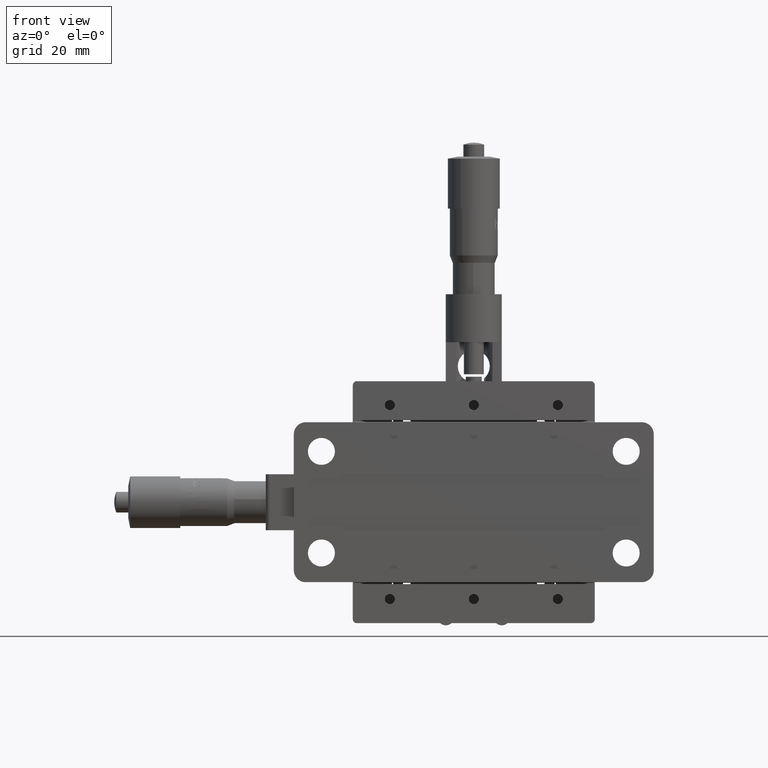
[diagram: clean part render]
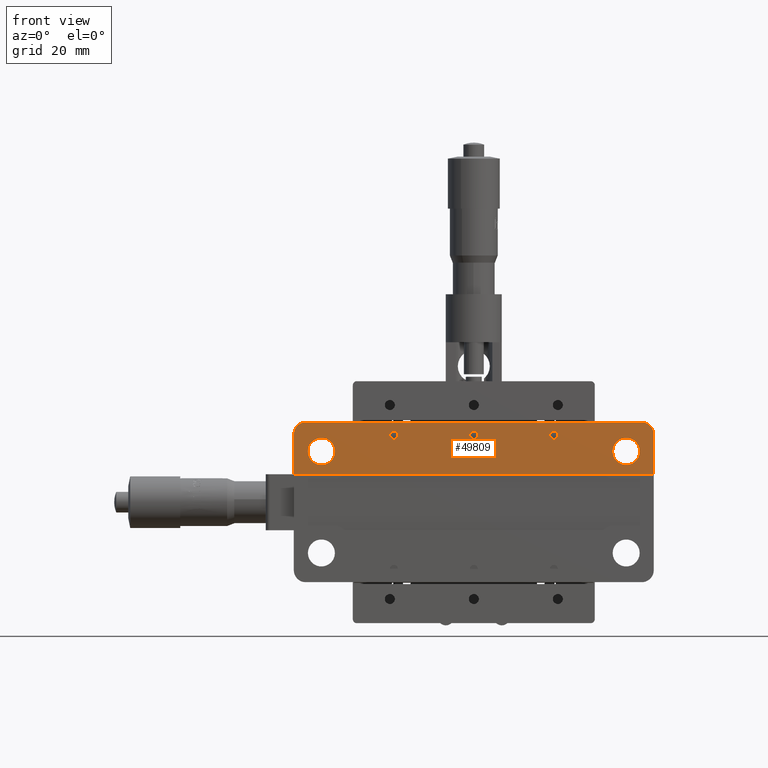
[diagram: same view with one face highlighted and labeled with its STEP entity id]
A machine part, front view. The second image highlights one B-rep face of the part: STEP entity #49809.
In plain terms, the highlighted planar face has unit normal (-0, -1, 0).
Its self-contained STEP definition (entity closure, byte-faithful):
#313 = ORIENTED_EDGE ( 'NONE', *, *, #62383, .F. ) ;
#328 = ORIENTED_EDGE ( 'NONE', *, *, #4516, .T. ) ;
#654 = VECTOR ( 'NONE', #11366, 1000.000000000000000 ) ;
#745 = EDGE_CURVE ( 'NONE', #62111, #57902, #9442, .T. ) ;
#829 = ORIENTED_EDGE ( 'NONE', *, *, #11904, .T. ) ;
#985 = CIRCLE ( 'NONE', #55430, 3.378199999999997900 ) ;
#1506 = EDGE_CURVE ( 'NONE', #61653, #65761, #9249, .T. ) ;
#2239 = AXIS2_PLACEMENT_3D ( 'NONE', #16568, #53657, #21901 ) ;
#2559 = CARTESIAN_POINT ( 'NONE',  ( 44.99999999999867100, -0.2000000000011714600, 6.999999999999784200 ) ) ;
#2897 = VECTOR ( 'NONE', #48389, 1000.000000000000000 ) ;
#2952 = VECTOR ( 'NONE', #51532, 1000.000000000000000 ) ;
#4516 = EDGE_CURVE ( 'NONE', #57902, #62111, #31489, .T. ) ;
#4999 = DIRECTION ( 'NONE',  ( -8.326672684688671600E-017, -1.000000000000000000, 0.0000000000000000000 ) ) ;
#5994 = VERTEX_POINT ( 'NONE', #2559 ) ;
#6262 = CIRCLE ( 'NONE', #27165, 1.024999999999998100 ) ;
#6847 = FACE_BOUND ( 'NONE', #56964, .T. ) ;
#7730 = EDGE_LOOP ( 'NONE', ( #34682, #31147, #39055, #829, #313, #65757 ) ) ;
#8172 = CARTESIAN_POINT ( 'NONE',  ( -38.10000000000133700, -0.2000000000011628000, 12.69999999999989600 ) ) ;
#8310 = DIRECTION ( 'NONE',  ( 8.326672684688671600E-017, 1.000000000000000000, 0.0000000000000000000 ) ) ;
#9086 = CARTESIAN_POINT ( 'NONE',  ( 1.024999999998499300, -0.2000000000011663300, 16.75000000000043300 ) ) ;
#9249 = LINE ( 'NONE', #13584, #49896 ) ;
#9442 = CIRCLE ( 'NONE', #42646, 1.024999999999998100 ) ;
#10045 = CARTESIAN_POINT ( 'NONE',  ( 41.99999999999867100, -0.2000000000011714600, 16.99999999999990100 ) ) ;
#10090 = EDGE_CURVE ( 'NONE', #44961, #55718, #19409, .T. ) ;
#11059 = VERTEX_POINT ( 'NONE', #18507 ) ;
#11366 = DIRECTION ( 'NONE',  ( 0.0000000000000000000, 0.0000000000000000000, 1.000000000000000000 ) ) ;
#11904 = EDGE_CURVE ( 'NONE', #65761, #19077, #20695, .T. ) ;
#12342 = ORIENTED_EDGE ( 'NONE', *, *, #745, .T. ) ;
#13472 = DIRECTION ( 'NONE',  ( -1.000000000000000000, 1.123292760552740500E-016, 0.0000000000000000000 ) ) ;
#13584 = CARTESIAN_POINT ( 'NONE',  ( 44.99999999999867100, -0.2000000000011714600, 19.99999999999990100 ) ) ;
#13604 = EDGE_LOOP ( 'NONE', ( #59875, #27331 ) ) ;
#13903 = CARTESIAN_POINT ( 'NONE',  ( 38.09999999999865800, -0.2000000000011714600, 12.69999999999989600 ) ) ;
#14266 = EDGE_CURVE ( 'NONE', #43007, #61653, #65558, .T. ) ;
#14424 = CARTESIAN_POINT ( 'NONE',  ( -21.02500000000108900, -0.2000000000011644100, 16.74999999999957000 ) ) ;
#14582 = CIRCLE ( 'NONE', #66705, 3.378199999999997900 ) ;
#15413 = DIRECTION ( 'NONE',  ( 1.000000000000000000, -1.084202172485503400E-016, 0.0000000000000000000 ) ) ;
#15427 = LINE ( 'NONE', #46126, #2952 ) ;
#15670 = VERTEX_POINT ( 'NONE', #44541 ) ;
#16001 = EDGE_CURVE ( 'NONE', #63072, #11059, #6262, .T. ) ;
#16252 = VERTEX_POINT ( 'NONE', #61614 ) ;
#16568 = CARTESIAN_POINT ( 'NONE',  ( -1.498801083243961300E-012, -0.2000000000011662400, 16.75000000000043300 ) ) ;
#17034 = LINE ( 'NONE', #64203, #2897 ) ;
#17089 = CIRCLE ( 'NONE', #66036, 1.024999999999998100 ) ;
#17118 = DIRECTION ( 'NONE',  ( 8.326672684688671600E-017, 1.000000000000000000, 0.0000000000000000000 ) ) ;
#17236 = DIRECTION ( 'NONE',  ( -1.110223024625156500E-016, -1.000000000000000000, 3.009265538105057700E-034 ) ) ;
#18507 = CARTESIAN_POINT ( 'NONE',  ( 21.02499999999851000, -0.2000000000011698000, 16.75000000000064300 ) ) ;
#19077 = VERTEX_POINT ( 'NONE', #28009 ) ;
#19287 = DIRECTION ( 'NONE',  ( -1.000000000000000000, 1.123292760552740500E-016, 0.0000000000000000000 ) ) ;
#19409 = CIRCLE ( 'NONE', #2239, 1.024999999999998100 ) ;
#19678 = CARTESIAN_POINT ( 'NONE',  ( -41.47820000000133000, -0.2000000000011624100, 12.69999999999989600 ) ) ;
#20570 = CARTESIAN_POINT ( 'NONE',  ( 41.99999999999867100, -0.2000000000011714600, 19.99999999999990100 ) ) ;
#20695 = CIRCLE ( 'NONE', #35233, 3.000000000000002700 ) ;
#20987 = EDGE_CURVE ( 'NONE', #55718, #44961, #21552, .T. ) ;
#21023 = FACE_BOUND ( 'NONE', #36097, .T. ) ;
#21552 = CIRCLE ( 'NONE', #68783, 1.024999999999998100 ) ;
#21674 = AXIS2_PLACEMENT_3D ( 'NONE', #10045, #47139, #15413 ) ;
#21795 = CARTESIAN_POINT ( 'NONE',  ( -18.97500000000109200, -0.2000000000011646100, 16.74999999999957000 ) ) ;
#21805 = VERTEX_POINT ( 'NONE', #19678 ) ;
#21812 = DIRECTION ( 'NONE',  ( 8.326672684688671600E-017, 1.000000000000000000, 0.0000000000000000000 ) ) ;
#21901 = DIRECTION ( 'NONE',  ( -1.000000000000000000, 1.057758217059030600E-016, 0.0000000000000000000 ) ) ;
#22797 = EDGE_CURVE ( 'NONE', #5994, #43007, #17034, .T. ) ;
#23641 = EDGE_LOOP ( 'NONE', ( #38896, #42668 ) ) ;
#23731 = AXIS2_PLACEMENT_3D ( 'NONE', #48971, #17236, #54337 ) ;
#24312 = CARTESIAN_POINT ( 'NONE',  ( 18.97499999999851300, -0.2000000000011696300, 16.75000000000064300 ) ) ;
#25313 = EDGE_CURVE ( 'NONE', #67620, #16252, #33145, .T. ) ;
#26089 = CARTESIAN_POINT ( 'NONE',  ( 38.09999999999865800, -0.2000000000011714600, 12.69999999999989600 ) ) ;
#27165 = AXIS2_PLACEMENT_3D ( 'NONE', #53578, #21812, #58933 ) ;
#27331 = ORIENTED_EDGE ( 'NONE', *, *, #45775, .T. ) ;
#27655 = PLANE ( 'NONE',  #23731 ) ;
#28009 = CARTESIAN_POINT ( 'NONE',  ( -45.00000000000132900, -0.2000000000011610500, 16.99999999999990400 ) ) ;
#28743 = CARTESIAN_POINT ( 'NONE',  ( -20.00000000000109100, -0.2000000000011645200, 16.74999999999957000 ) ) ;
#28863 = LINE ( 'NONE', #43076, #654 ) ;
#29248 = EDGE_CURVE ( 'NONE', #15670, #21805, #985, .T. ) ;
#29786 = CARTESIAN_POINT ( 'NONE',  ( -45.00000000000132900, -0.2000000000011610500, 6.999999999999786800 ) ) ;
#29928 = CARTESIAN_POINT ( 'NONE',  ( 19.99999999999851100, -0.2000000000011697400, 16.75000000000064300 ) ) ;
#30439 = CARTESIAN_POINT ( 'NONE',  ( -1.498801083243961300E-012, -0.2000000000011662400, 16.75000000000043300 ) ) ;
#31147 = ORIENTED_EDGE ( 'NONE', *, *, #14266, .T. ) ;
#31286 = EDGE_CURVE ( 'NONE', #21805, #15670, #14582, .T. ) ;
#31342 = ORIENTED_EDGE ( 'NONE', *, *, #61042, .T. ) ;
#31381 = DIRECTION ( 'NONE',  ( -1.000000000000000000, 1.123292760552740500E-016, 0.0000000000000000000 ) ) ;
#31489 = CIRCLE ( 'NONE', #37359, 1.024999999999998100 ) ;
#33145 = CIRCLE ( 'NONE', #54731, 3.378199999999997900 ) ;
#33350 = FACE_OUTER_BOUND ( 'NONE', #7730, .T. ) ;
#33962 = ORIENTED_EDGE ( 'NONE', *, *, #29248, .T. ) ;
#34011 = DIRECTION ( 'NONE',  ( -1.000000000000000000, 1.057758217059030600E-016, 0.0000000000000000000 ) ) ;
#34682 = ORIENTED_EDGE ( 'NONE', *, *, #22797, .T. ) ;
#35047 = FACE_BOUND ( 'NONE', #13604, .T. ) ;
#35218 = DIRECTION ( 'NONE',  ( -1.000000000000000000, 1.057758217059030600E-016, 0.0000000000000000000 ) ) ;
#35233 = AXIS2_PLACEMENT_3D ( 'NONE', #36731, #4999, #42040 ) ;
#35743 = DIRECTION ( 'NONE',  ( -1.000000000000000000, 1.057758217059030600E-016, 0.0000000000000000000 ) ) ;
#36097 = EDGE_LOOP ( 'NONE', ( #57856, #33962 ) ) ;
#36731 = CARTESIAN_POINT ( 'NONE',  ( -42.00000000000132900, -0.2000000000011628000, 16.99999999999990400 ) ) ;
#37359 = AXIS2_PLACEMENT_3D ( 'NONE', #28743, #65844, #34011 ) ;
#38896 = ORIENTED_EDGE ( 'NONE', *, *, #10090, .T. ) ;
#39055 = ORIENTED_EDGE ( 'NONE', *, *, #1506, .T. ) ;
#39382 = VERTEX_POINT ( 'NONE', #29786 ) ;
#42040 = DIRECTION ( 'NONE',  ( 1.000000000000000000, -1.084202172485503400E-016, 0.0000000000000000000 ) ) ;
#42646 = AXIS2_PLACEMENT_3D ( 'NONE', #50767, #8310, #56345 ) ;
#42668 = ORIENTED_EDGE ( 'NONE', *, *, #20987, .T. ) ;
#43007 = VERTEX_POINT ( 'NONE', #67837 ) ;
#43076 = CARTESIAN_POINT ( 'NONE',  ( -45.00000000000132900, -0.2000000000011610500, -20.00000000000009900 ) ) ;
#44541 = CARTESIAN_POINT ( 'NONE',  ( -34.72180000000133800, -0.2000000000011630500, 12.69999999999989600 ) ) ;
#44961 = VERTEX_POINT ( 'NONE', #48824 ) ;
#45232 = DIRECTION ( 'NONE',  ( 8.326672684688671600E-017, 1.000000000000000000, 0.0000000000000000000 ) ) ;
#45775 = EDGE_CURVE ( 'NONE', #11059, #63072, #17089, .T. ) ;
#45797 = EDGE_CURVE ( 'NONE', #5994, #39382, #15427, .T. ) ;
#46126 = CARTESIAN_POINT ( 'NONE',  ( 44.99999999999867100, -0.2000000000011714600, 6.999999999999784200 ) ) ;
#47139 = DIRECTION ( 'NONE',  ( -8.326672684688671600E-017, -1.000000000000000000, 0.0000000000000000000 ) ) ;
#47504 = FACE_BOUND ( 'NONE', #48570, .T. ) ;
#48389 = DIRECTION ( 'NONE',  ( 0.0000000000000000000, 0.0000000000000000000, 1.000000000000000000 ) ) ;
#48570 = EDGE_LOOP ( 'NONE', ( #12342, #328 ) ) ;
#48824 = CARTESIAN_POINT ( 'NONE',  ( -1.025000000001496900, -0.2000000000011661600, 16.75000000000043300 ) ) ;
#48847 = CARTESIAN_POINT ( 'NONE',  ( -38.10000000000133700, -0.2000000000011628000, 12.69999999999989600 ) ) ;
#48971 = CARTESIAN_POINT ( 'NONE',  ( 44.99999999999867100, -0.2000000000011714600, 6.999999999999784200 ) ) ;
#49809 = ADVANCED_FACE ( 'NONE', ( #21023, #6847, #35047, #61628, #47504, #33350 ), #27655, .T. ) ;
#49896 = VECTOR ( 'NONE', #61590, 1000.000000000000000 ) ;
#50767 = CARTESIAN_POINT ( 'NONE',  ( -20.00000000000109100, -0.2000000000011645200, 16.74999999999957000 ) ) ;
#51039 = DIRECTION ( 'NONE',  ( 8.326672684688671600E-017, 1.000000000000000000, 0.0000000000000000000 ) ) ;
#51532 = DIRECTION ( 'NONE',  ( -1.000000000000000000, 1.110223024625156500E-016, 1.084202172485504400E-017 ) ) ;
#53578 = CARTESIAN_POINT ( 'NONE',  ( 19.99999999999851100, -0.2000000000011697400, 16.75000000000064300 ) ) ;
#53657 = DIRECTION ( 'NONE',  ( 8.326672684688671600E-017, 1.000000000000000000, 0.0000000000000000000 ) ) ;
#53807 = CARTESIAN_POINT ( 'NONE',  ( 41.47819999999865100, -0.2000000000011717400, 12.69999999999989600 ) ) ;
#54202 = DIRECTION ( 'NONE',  ( -1.000000000000000000, 1.123292760552740500E-016, 0.0000000000000000000 ) ) ;
#54337 = DIRECTION ( 'NONE',  ( 1.000000000000000000, -1.110223024625156500E-016, -1.084202172485504400E-017 ) ) ;
#54731 = AXIS2_PLACEMENT_3D ( 'NONE', #26089, #63189, #31381 ) ;
#55430 = AXIS2_PLACEMENT_3D ( 'NONE', #48847, #17118, #54202 ) ;
#55718 = VERTEX_POINT ( 'NONE', #9086 ) ;
#55759 = CIRCLE ( 'NONE', #56953, 3.378199999999997900 ) ;
#56345 = DIRECTION ( 'NONE',  ( -1.000000000000000000, 1.057758217059030600E-016, 0.0000000000000000000 ) ) ;
#56526 = CARTESIAN_POINT ( 'NONE',  ( -42.00000000000132200, -0.2000000000011628000, 19.99999999999990100 ) ) ;
#56953 = AXIS2_PLACEMENT_3D ( 'NONE', #13903, #51039, #19287 ) ;
#56964 = EDGE_LOOP ( 'NONE', ( #31342, #59897 ) ) ;
#57856 = ORIENTED_EDGE ( 'NONE', *, *, #31286, .T. ) ;
#57902 = VERTEX_POINT ( 'NONE', #21795 ) ;
#58933 = DIRECTION ( 'NONE',  ( -1.000000000000000000, 1.057758217059030600E-016, 0.0000000000000000000 ) ) ;
#59875 = ORIENTED_EDGE ( 'NONE', *, *, #16001, .T. ) ;
#59897 = ORIENTED_EDGE ( 'NONE', *, *, #25313, .T. ) ;
#61042 = EDGE_CURVE ( 'NONE', #16252, #67620, #55759, .T. ) ;
#61590 = DIRECTION ( 'NONE',  ( -1.000000000000000000, 1.110223024625156500E-016, 1.084202172485504400E-017 ) ) ;
#61614 = CARTESIAN_POINT ( 'NONE',  ( 34.72179999999865900, -0.2000000000011710700, 12.69999999999989600 ) ) ;
#61628 = FACE_BOUND ( 'NONE', #23641, .T. ) ;
#61653 = VERTEX_POINT ( 'NONE', #20570 ) ;
#62111 = VERTEX_POINT ( 'NONE', #14424 ) ;
#62383 = EDGE_CURVE ( 'NONE', #39382, #19077, #28863, .T. ) ;
#63072 = VERTEX_POINT ( 'NONE', #24312 ) ;
#63189 = DIRECTION ( 'NONE',  ( 8.326672684688671600E-017, 1.000000000000000000, 0.0000000000000000000 ) ) ;
#64203 = CARTESIAN_POINT ( 'NONE',  ( 44.99999999999867100, -0.2000000000011714600, 6.999999999999784200 ) ) ;
#65558 = CIRCLE ( 'NONE', #21674, 3.000000000000002700 ) ;
#65757 = ORIENTED_EDGE ( 'NONE', *, *, #45797, .F. ) ;
#65761 = VERTEX_POINT ( 'NONE', #56526 ) ;
#65844 = DIRECTION ( 'NONE',  ( 8.326672684688671600E-017, 1.000000000000000000, 0.0000000000000000000 ) ) ;
#66036 = AXIS2_PLACEMENT_3D ( 'NONE', #29928, #67041, #35218 ) ;
#66705 = AXIS2_PLACEMENT_3D ( 'NONE', #8172, #45232, #13472 ) ;
#67041 = DIRECTION ( 'NONE',  ( 8.326672684688671600E-017, 1.000000000000000000, 0.0000000000000000000 ) ) ;
#67556 = DIRECTION ( 'NONE',  ( 8.326672684688671600E-017, 1.000000000000000000, 0.0000000000000000000 ) ) ;
#67620 = VERTEX_POINT ( 'NONE', #53807 ) ;
#67837 = CARTESIAN_POINT ( 'NONE',  ( 44.99999999999867100, -0.2000000000011714600, 16.99999999999990100 ) ) ;
#68783 = AXIS2_PLACEMENT_3D ( 'NONE', #30439, #67556, #35743 ) ;